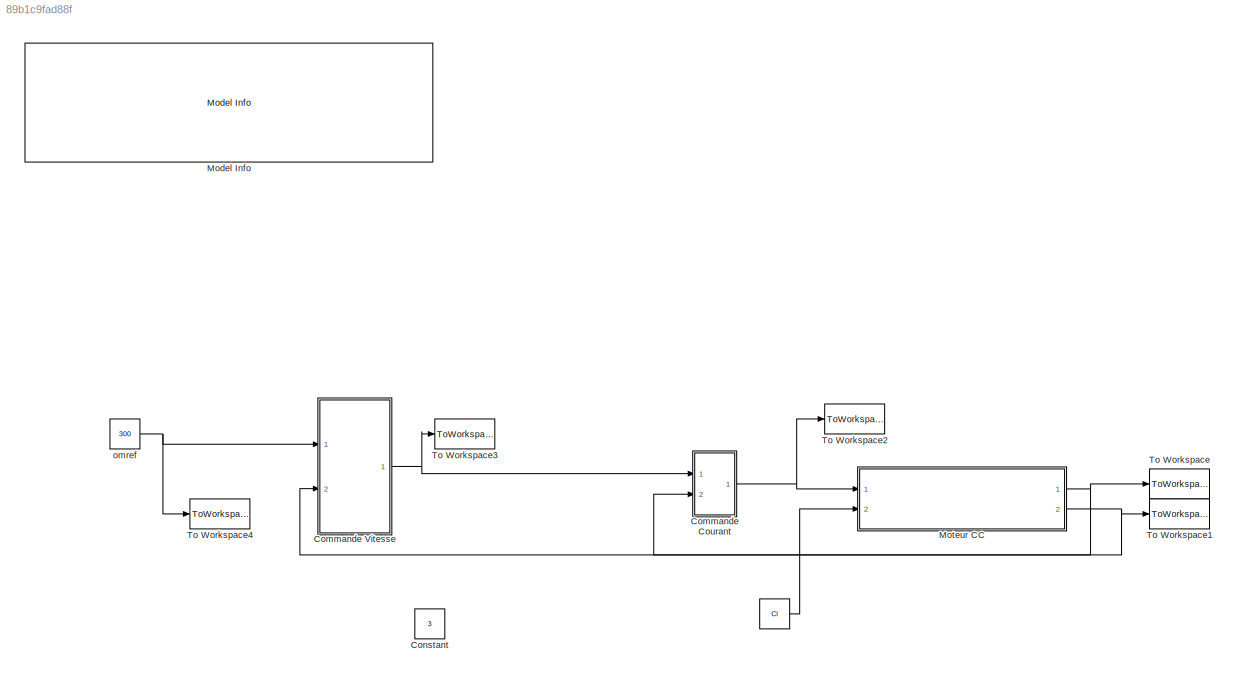
MODEL slx_89b1c9fad88f
KIND model
CONFIG AbsTol = auto
CONFIG EnableMultiTasking = off
CONFIG FixedStep = auto
CONFIG MaxStep = 1e-4
CONFIG MinStep = auto
CONFIG RelTol = 1e-3
CONFIG SampleTimeConstraint = Unconstrained
CONFIG Solver = VariableStepAuto
CONFIG SolverName = VariableStepAuto
CONFIG StartTime = 0.0
CONFIG StopTime = Tf
BLOCK [Constant]  
  Value = Cl
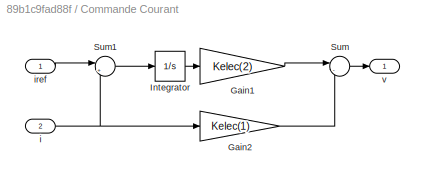
BLOCK [SubSystem] Commande Courant
  Ports = [2, 1]
  RequestExecContextInheritance = off
BLOCK [Gain] Commande Courant/Gain1
  Gain = Kelec(2)
  OutDataTypeStr = Inherit: Inherit via internal rule
  ParamDataTypeStr = Inherit: Inherit via internal rule
  SaturateOnIntegerOverflow = off
BLOCK [Gain] Commande Courant/Gain2
  Gain = Kelec(1)
  OutDataTypeStr = Inherit: Inherit via internal rule
  ParamDataTypeStr = Inherit: Inherit via internal rule
  SaturateOnIntegerOverflow = off
BLOCK [Integrator] Commande Courant/Integrator
  Ports = [1, 1]
BLOCK [Sum] Commande Courant/Sum
  IconShape = round
  InputSameDT = off
  Inputs = |--
  OutDataTypeStr = Inherit: Inherit via internal rule
  Ports = [2, 1]
  SaturateOnIntegerOverflow = off
BLOCK [Sum] Commande Courant/Sum1
  IconShape = round
  InputSameDT = off
  Inputs = |+-
  OutDataTypeStr = Inherit: Inherit via internal rule
  Ports = [2, 1]
  SaturateOnIntegerOverflow = off
BLOCK [Inport] Commande Courant/i
  IconDisplay = Port number
  Port = 2
BLOCK [Inport] Commande Courant/iref
  IconDisplay = Port number
BLOCK [Outport] Commande Courant/v
  IconDisplay = Port number
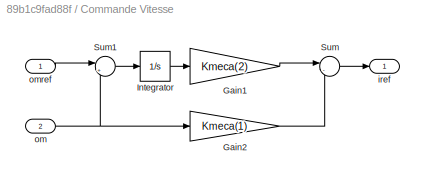
BLOCK [SubSystem] Commande Vitesse
  Ports = [2, 1]
  RequestExecContextInheritance = off
BLOCK [Gain] Commande Vitesse/Gain1
  Gain = Kmeca(2)
  OutDataTypeStr = Inherit: Inherit via internal rule
  ParamDataTypeStr = Inherit: Inherit via internal rule
  SaturateOnIntegerOverflow = off
BLOCK [Gain] Commande Vitesse/Gain2
  Gain = Kmeca(1)
  OutDataTypeStr = Inherit: Inherit via internal rule
  ParamDataTypeStr = Inherit: Inherit via internal rule
  SaturateOnIntegerOverflow = off
BLOCK [Integrator] Commande Vitesse/Integrator
  Ports = [1, 1]
BLOCK [Sum] Commande Vitesse/Sum
  IconShape = round
  InputSameDT = off
  Inputs = |--
  OutDataTypeStr = Inherit: Inherit via internal rule
  Ports = [2, 1]
  SaturateOnIntegerOverflow = off
BLOCK [Sum] Commande Vitesse/Sum1
  IconShape = round
  InputSameDT = off
  Inputs = |+-
  OutDataTypeStr = Inherit: Inherit via internal rule
  Ports = [2, 1]
  SaturateOnIntegerOverflow = off
BLOCK [Outport] Commande Vitesse/iref
  IconDisplay = Port number
BLOCK [Inport] Commande Vitesse/om
  IconDisplay = Port number
  Port = 2
BLOCK [Inport] Commande Vitesse/omref
  IconDisplay = Port number
BLOCK [Constant] Constant
  Value = 3
BLOCK [Reference] Model Info  REF=simulink/Model-Wide
Utilities/Model Info
  Ports = []
  SourceBlock = simulink/Model-Wide\nUtilities/Model Info
  SourceProductBaseCode = SL
  SourceProductName = Simulink
  SourceType = CMBlock
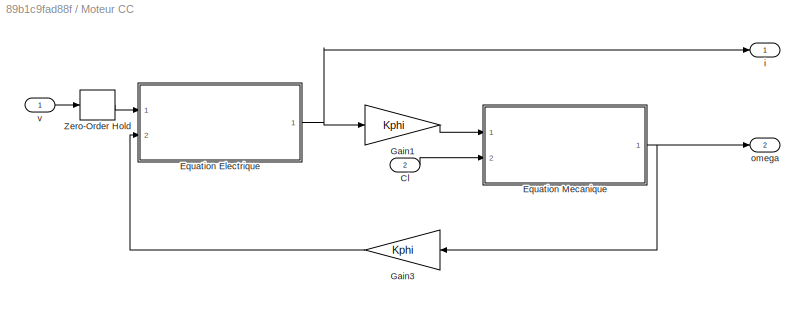
BLOCK [SubSystem] Moteur CC
  Ports = [2, 2]
  RequestExecContextInheritance = off
BLOCK [Inport] Moteur CC/Cl
  IconDisplay = Port number
  Port = 2
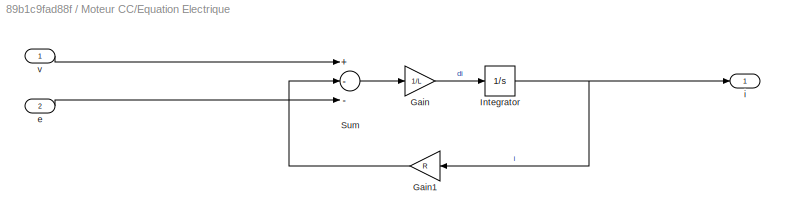
BLOCK [SubSystem] Moteur CC/Equation Electrique
  Ports = [2, 1]
  RequestExecContextInheritance = off
BLOCK [Gain] Moteur CC/Equation Electrique/Gain
  Gain = 1/L
  OutDataTypeStr = Inherit: Inherit via internal rule
  ParamDataTypeStr = Inherit: Inherit via internal rule
  SaturateOnIntegerOverflow = off
BLOCK [Gain] Moteur CC/Equation Electrique/Gain1
  Gain = R
  OutDataTypeStr = Inherit: Inherit via internal rule
  ParamDataTypeStr = Inherit: Inherit via internal rule
  SaturateOnIntegerOverflow = off
BLOCK [Integrator] Moteur CC/Equation Electrique/Integrator
  Ports = [1, 1]
BLOCK [Sum] Moteur CC/Equation Electrique/Sum
  InputSameDT = off
  Inputs = +--
  OutDataTypeStr = Inherit: Inherit via internal rule
  Ports = [3, 1]
  SaturateOnIntegerOverflow = off
BLOCK [Inport] Moteur CC/Equation Electrique/e
  IconDisplay = Port number
  Port = 2
BLOCK [Outport] Moteur CC/Equation Electrique/i
  IconDisplay = Port number
BLOCK [Inport] Moteur CC/Equation Electrique/v
  IconDisplay = Port number
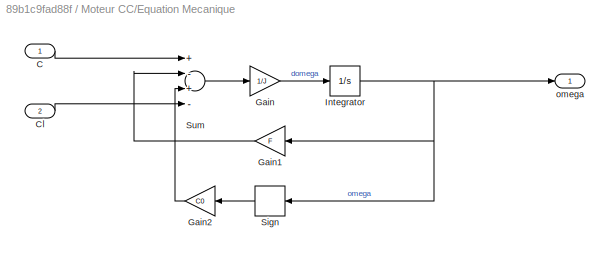
BLOCK [SubSystem] Moteur CC/Equation Mecanique
  Ports = [2, 1]
  RequestExecContextInheritance = off
BLOCK [Inport] Moteur CC/Equation Mecanique/C
  IconDisplay = Port number
BLOCK [Inport] Moteur CC/Equation Mecanique/Cl
  IconDisplay = Port number
  Port = 2
BLOCK [Gain] Moteur CC/Equation Mecanique/Gain
  Gain = 1/J
  OutDataTypeStr = Inherit: Inherit via internal rule
  ParamDataTypeStr = Inherit: Inherit via internal rule
  SaturateOnIntegerOverflow = off
BLOCK [Gain] Moteur CC/Equation Mecanique/Gain1
  Gain = F
  OutDataTypeStr = Inherit: Inherit via internal rule
  ParamDataTypeStr = Inherit: Inherit via internal rule
  SaturateOnIntegerOverflow = off
BLOCK [Gain] Moteur CC/Equation Mecanique/Gain2
  Gain = C0
  OutDataTypeStr = Inherit: Inherit via internal rule
  ParamDataTypeStr = Inherit: Inherit via internal rule
  SaturateOnIntegerOverflow = off
BLOCK [Integrator] Moteur CC/Equation Mecanique/Integrator
  Ports = [1, 1]
BLOCK [Signum] Moteur CC/Equation Mecanique/Sign
BLOCK [Sum] Moteur CC/Equation Mecanique/Sum
  InputSameDT = off
  Inputs = +-+-
  OutDataTypeStr = Inherit: Inherit via internal rule
  Ports = [4, 1]
  SaturateOnIntegerOverflow = off
BLOCK [Outport] Moteur CC/Equation Mecanique/omega
  IconDisplay = Port number
BLOCK [Gain] Moteur CC/Gain1
  Gain = Kphi
  OutDataTypeStr = Inherit: Inherit via internal rule
  ParamDataTypeStr = Inherit: Inherit via internal rule
  SaturateOnIntegerOverflow = off
BLOCK [Gain] Moteur CC/Gain3  
  Gain = Kphi
  OutDataTypeStr = Inherit: Inherit via internal rule
  ParamDataTypeStr = Inherit: Inherit via internal rule
  SaturateOnIntegerOverflow = off
BLOCK [ZeroOrderHold] Moteur CC/Zero-Order Hold
  SampleTime = Ts
BLOCK [Outport] Moteur CC/i
  IconDisplay = Port number
BLOCK [Outport] Moteur CC/omega
  IconDisplay = Port number
  Port = 2
BLOCK [Inport] Moteur CC/v
  IconDisplay = Port number
BLOCK [ToWorkspace] To Workspace
  FixptAsFi = on
  MaxDataPoints = inf
  Ports = [1]
  SampleTime = -1
  Save2DSignal = 3-D array (concatenate along third dimension)
  SaveFormat = Timeseries
  VariableName = i_o
BLOCK [ToWorkspace] To Workspace1
  FixptAsFi = on
  MaxDataPoints = inf
  Ports = [1]
  SampleTime = -1
  Save2DSignal = 3-D array (concatenate along third dimension)
  SaveFormat = Timeseries
  VariableName = omega_o
BLOCK [ToWorkspace] To Workspace2
  FixptAsFi = on
  MaxDataPoints = inf
  Ports = [1]
  SampleTime = -1
  Save2DSignal = 3-D array (concatenate along third dimension)
  SaveFormat = Timeseries
  VariableName = v_o
BLOCK [ToWorkspace] To Workspace3
  FixptAsFi = on
  MaxDataPoints = inf
  Ports = [1]
  SampleTime = -1
  Save2DSignal = 3-D array (concatenate along third dimension)
  SaveFormat = Timeseries
  VariableName = iref_o
BLOCK [ToWorkspace] To Workspace4
  FixptAsFi = on
  MaxDataPoints = inf
  Ports = [1]
  SampleTime = -1
  Save2DSignal = 3-D array (concatenate along third dimension)
  SaveFormat = Timeseries
  VariableName = omref_o
BLOCK [Constant] omref
  Value = 300
LINE  :1 -> Moteur CC:2
LINE Commande Courant/Gain1:1 -> Commande Courant/Sum:1
LINE Commande Courant/Gain2:1 -> Commande Courant/Sum:2
LINE Commande Courant/Integrator:1 -> Commande Courant/Gain1:1
LINE Commande Courant/Sum1:1 -> Commande Courant/Integrator:1
LINE Commande Courant/Sum:1 -> Commande Courant/v:1
NET Commande Courant/i:1 -> Commande Courant/Gain2:1, Commande Courant/Sum1:2
LINE Commande Courant/iref:1 -> Commande Courant/Sum1:1
NET Commande Courant:1 -> Moteur CC:1, To Workspace2:1
LINE Commande Vitesse/Gain1:1 -> Commande Vitesse/Sum:1
LINE Commande Vitesse/Gain2:1 -> Commande Vitesse/Sum:2
LINE Commande Vitesse/Integrator:1 -> Commande Vitesse/Gain1:1
LINE Commande Vitesse/Sum1:1 -> Commande Vitesse/Integrator:1
LINE Commande Vitesse/Sum:1 -> Commande Vitesse/iref:1
NET Commande Vitesse/om:1 -> Commande Vitesse/Gain2:1, Commande Vitesse/Sum1:2
LINE Commande Vitesse/omref:1 -> Commande Vitesse/Sum1:1
NET Commande Vitesse:1 -> Commande Courant:1, To Workspace3:1
LINE Moteur CC/Cl:1 -> Moteur CC/Equation Mecanique:2
LINE Moteur CC/Equation Electrique/Gain1:1 -> Moteur CC/Equation Electrique/Sum:2
LINE Moteur CC/Equation Electrique/Gain:1 -> Moteur CC/Equation Electrique/Integrator:1
NET Moteur CC/Equation Electrique/Integrator:1 -> Moteur CC/Equation Electrique/Gain1:1, Moteur CC/Equation Electrique/i:1
LINE Moteur CC/Equation Electrique/Sum:1 -> Moteur CC/Equation Electrique/Gain:1
LINE Moteur CC/Equation Electrique/e:1 -> Moteur CC/Equation Electrique/Sum:3
LINE Moteur CC/Equation Electrique/v:1 -> Moteur CC/Equation Electrique/Sum:1
NET Moteur CC/Equation Electrique:1 -> Moteur CC/Gain1:1, Moteur CC/i:1
LINE Moteur CC/Equation Mecanique/C:1 -> Moteur CC/Equation Mecanique/Sum:1
LINE Moteur CC/Equation Mecanique/Cl:1 -> Moteur CC/Equation Mecanique/Sum:4
LINE Moteur CC/Equation Mecanique/Gain1:1 -> Moteur CC/Equation Mecanique/Sum:2
LINE Moteur CC/Equation Mecanique/Gain2:1 -> Moteur CC/Equation Mecanique/Sum:3
LINE Moteur CC/Equation Mecanique/Gain:1 -> Moteur CC/Equation Mecanique/Integrator:1
NET Moteur CC/Equation Mecanique/Integrator:1 -> Moteur CC/Equation Mecanique/Gain1:1, Moteur CC/Equation Mecanique/Sign:1, Moteur CC/Equation Mecanique/omega:1
LINE Moteur CC/Equation Mecanique/Sign:1 -> Moteur CC/Equation Mecanique/Gain2:1
LINE Moteur CC/Equation Mecanique/Sum:1 -> Moteur CC/Equation Mecanique/Gain:1
NET Moteur CC/Equation Mecanique:1 -> Moteur CC/Gain3  :1, Moteur CC/omega:1
LINE Moteur CC/Gain1:1 -> Moteur CC/Equation Mecanique:1
LINE Moteur CC/Gain3  :1 -> Moteur CC/Equation Electrique:2
LINE Moteur CC/Zero-Order Hold:1 -> Moteur CC/Equation Electrique:1
LINE Moteur CC/v:1 -> Moteur CC/Zero-Order Hold:1
NET Moteur CC:1 -> Commande Courant:2, To Workspace:1
NET Moteur CC:2 -> Commande Vitesse:2, To Workspace1:1
NET omref:1 -> Commande Vitesse:1, To Workspace4:1
note: NET lines group one-source signal fan-out (src -> all destinations, sorted); 1:1 wires keep LINE
